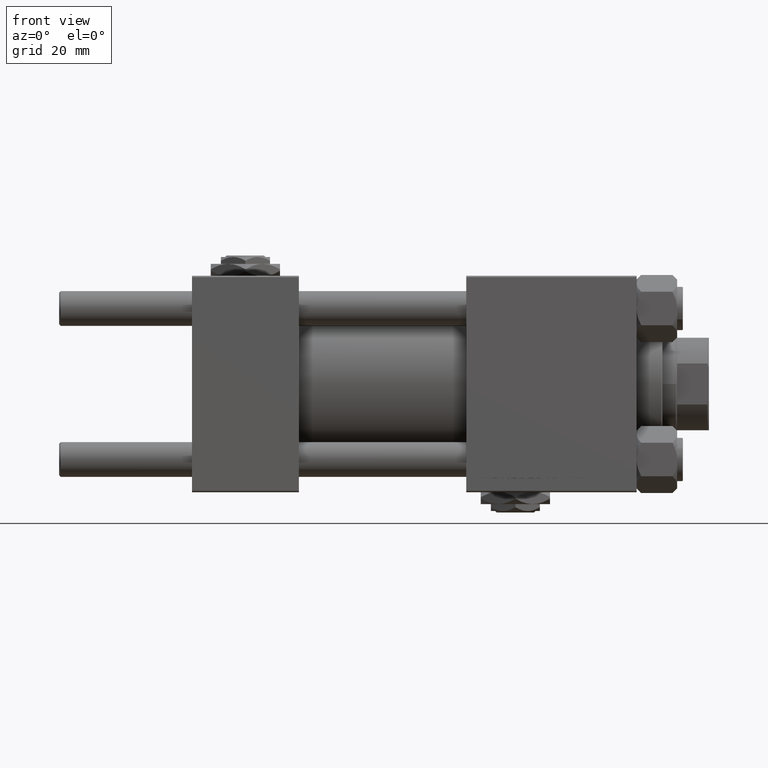
[diagram: clean part render]
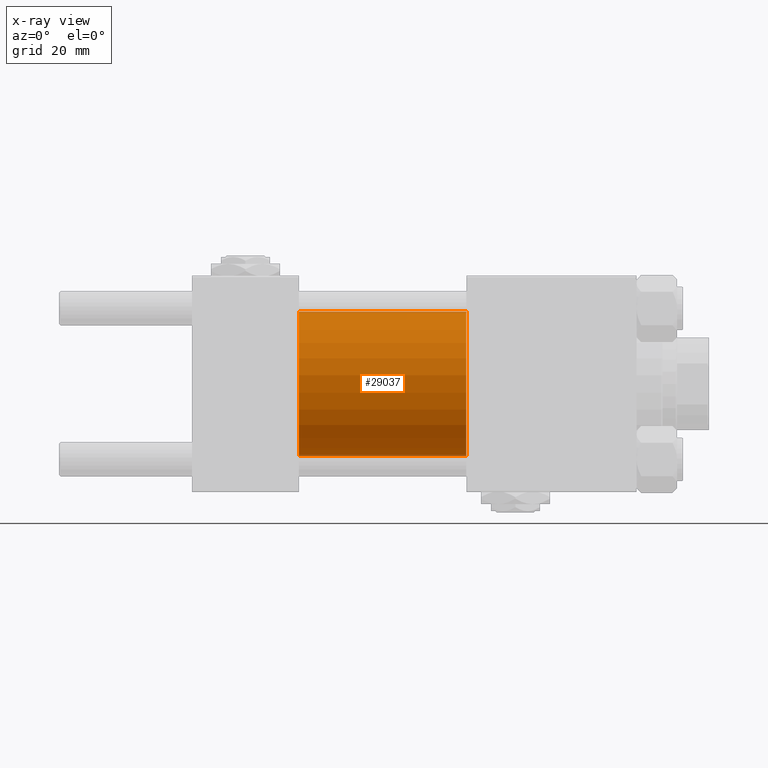
[diagram: x-ray — body ghosted, one internal face saturated and labeled with its STEP entity id]
A machine part, front view, then the same camera in x-ray: the body is ghosted and one INTERNAL B-rep face — a face not visible from any outside direction — is saturated and labeled: STEP entity #29037.
In plain terms, the highlighted cylindrical surface (partial cylindrical patch) has radius 25 mm, axis along (-1, -0, -0).
Its self-contained STEP definition (entity closure, byte-faithful):
#3514 = DIRECTION ( 'NONE',  ( -1.000000000000000000, -0.000000000000000000, -0.000000000000000000 ) ) ;
#4296 = DIRECTION ( 'NONE',  ( 0.000000000000000000, 0.000000000000000000, -1.000000000000000000 ) ) ;
#5030 = LINE ( 'NONE', #29638, #8716 ) ;
#6106 = ORIENTED_EDGE ( 'NONE', *, *, #30754, .T. ) ;
#7682 = AXIS2_PLACEMENT_3D ( 'NONE', #12150, #28132, #4296 ) ;
#7756 = DIRECTION ( 'NONE',  ( 1.000000000000000000, 0.000000000000000000, 0.000000000000000000 ) ) ;
#8716 = VECTOR ( 'NONE', #49519, 1000.000000000000000 ) ;
#9525 = VERTEX_POINT ( 'NONE', #26711 ) ;
#12150 = CARTESIAN_POINT ( 'NONE',  ( 95.00000000000000000, 0.000000000000000000, 0.000000000000000000 ) ) ;
#12455 = CARTESIAN_POINT ( 'NONE',  ( 37.00000000000000000, 0.000000000000000000, 0.000000000000000000 ) ) ;
#12804 = CARTESIAN_POINT ( 'NONE',  ( 95.00000000000000000, 0.000000000000000000, 0.000000000000000000 ) ) ;
#17076 = CARTESIAN_POINT ( 'NONE',  ( 95.00000000000000000, 3.061616997868382254E-15, -25.00000000000000000 ) ) ;
#17994 = VERTEX_POINT ( 'NONE', #17076 ) ;
#19599 = CARTESIAN_POINT ( 'NONE',  ( 95.00000000000000000, 0.000000000000000000, 25.00000000000000000 ) ) ;
#19647 = VERTEX_POINT ( 'NONE', #19599 ) ;
#22892 = AXIS2_PLACEMENT_3D ( 'NONE', #12804, #24861, #24597 ) ;
#23559 = ORIENTED_EDGE ( 'NONE', *, *, #43463, .F. ) ;
#24597 = DIRECTION ( 'NONE',  ( 0.000000000000000000, 0.000000000000000000, 1.000000000000000000 ) ) ;
#24861 = DIRECTION ( 'NONE',  ( -1.000000000000000000, -0.000000000000000000, -0.000000000000000000 ) ) ;
#25791 = CIRCLE ( 'NONE', #35792, 25.00000000000000000 ) ;
#26711 = CARTESIAN_POINT ( 'NONE',  ( 37.00000000000000000, 0.000000000000000000, 25.00000000000000000 ) ) ;
#26847 = LINE ( 'NONE', #39401, #51339 ) ;
#28132 = DIRECTION ( 'NONE',  ( 1.000000000000000000, 0.000000000000000000, 0.000000000000000000 ) ) ;
#28527 = FACE_OUTER_BOUND ( 'NONE', #40456, .T. ) ;
#29037 = ADVANCED_FACE ( 'NONE', ( #28527 ), #44487, .F. ) ;
#29638 = CARTESIAN_POINT ( 'NONE',  ( 95.00000000000000000, 3.061616997868382254E-15, -25.00000000000000000 ) ) ;
#30085 = ORIENTED_EDGE ( 'NONE', *, *, #31372, .F. ) ;
#30754 = EDGE_CURVE ( 'NONE', #17994, #40411, #5030, .T. ) ;
#31372 = EDGE_CURVE ( 'NONE', #19647, #9525, #26847, .T. ) ;
#34845 = ORIENTED_EDGE ( 'NONE', *, *, #49393, .T. ) ;
#35792 = AXIS2_PLACEMENT_3D ( 'NONE', #12455, #7756, #44393 ) ;
#39401 = CARTESIAN_POINT ( 'NONE',  ( 95.00000000000000000, 0.000000000000000000, 25.00000000000000000 ) ) ;
#39463 = CIRCLE ( 'NONE', #7682, 25.00000000000000000 ) ;
#40411 = VERTEX_POINT ( 'NONE', #44469 ) ;
#40456 = EDGE_LOOP ( 'NONE', ( #34845, #6106, #23559, #30085 ) ) ;
#43463 = EDGE_CURVE ( 'NONE', #9525, #40411, #25791, .T. ) ;
#44393 = DIRECTION ( 'NONE',  ( 0.000000000000000000, 0.000000000000000000, -1.000000000000000000 ) ) ;
#44469 = CARTESIAN_POINT ( 'NONE',  ( 37.00000000000000000, 3.061616997868382254E-15, -25.00000000000000000 ) ) ;
#44487 = CYLINDRICAL_SURFACE ( 'NONE', #22892, 25.00000000000000000 ) ;
#49393 = EDGE_CURVE ( 'NONE', #19647, #17994, #39463, .T. ) ;
#49519 = DIRECTION ( 'NONE',  ( -1.000000000000000000, -0.000000000000000000, -0.000000000000000000 ) ) ;
#51339 = VECTOR ( 'NONE', #3514, 1000.000000000000000 ) ;